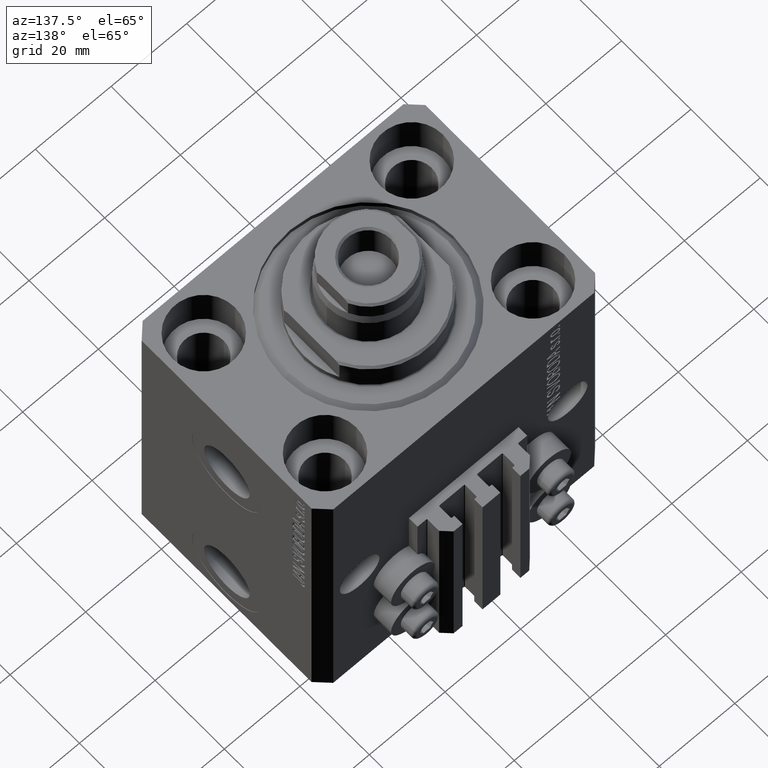
[diagram: clean part render]
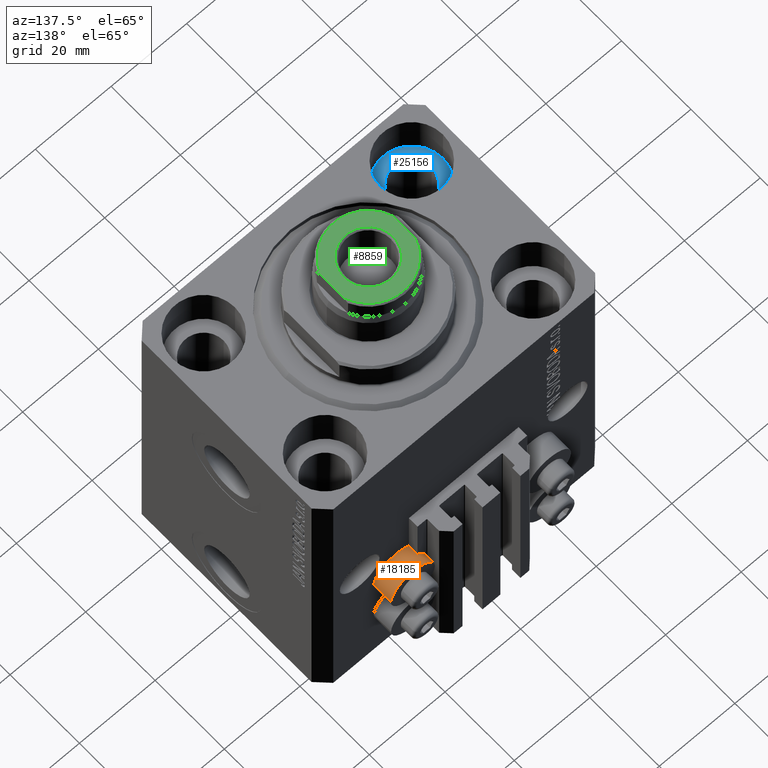
[diagram: same view with three faces highlighted in distinct colors, each labeled with its STEP entity id]
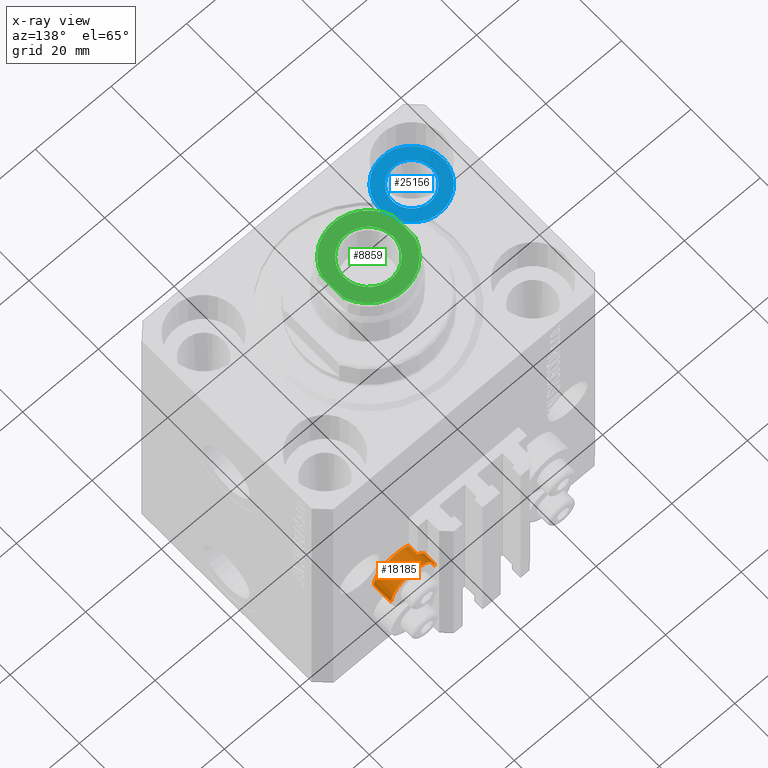
[diagram: x-ray of the same camera — body ghosted, the three highlighted faces saturated]
A machine part, auxiliary view with three faces highlighted in distinct colors.
The next image is the same camera in x-ray (body ghosted, the three faces saturated) — at least one of them is partly hidden behind the body in this view.
Their STEP definitions:

[orange] entity #18185 — the highlighted cylindrical surface (edge-blend (fillet) strip) has radius 5.8 mm, axis along (0, 1, 0).
#542 = CIRCLE ( 'NONE', #12649, 5.799999999999999822 ) ;
#1376 = EDGE_CURVE ( 'NONE', #31262, #31170, #25067, .T. ) ;
#1948 = ORIENTED_EDGE ( 'NONE', *, *, #1376, .T. ) ;
#4572 = EDGE_CURVE ( 'NONE', #40812, #18483, #19758, .T. ) ;
#4655 = AXIS2_PLACEMENT_3D ( 'NONE', #29429, #19247, #33215 ) ;
#7058 = ORIENTED_EDGE ( 'NONE', *, *, #18446, .F. ) ;
#7139 = ORIENTED_EDGE ( 'NONE', *, *, #13946, .T. ) ;
#7478 = DIRECTION ( 'NONE',  ( 0.000000000000000000, 0.000000000000000000, 1.000000000000000000 ) ) ;
#7623 = DIRECTION ( 'NONE',  ( 6.938893903961350152E-16, 1.000000000000000000, 0.000000000000000000 ) ) ;
#10476 = CARTESIAN_POINT ( 'NONE',  ( 23.79999999999999716, 27.49999999999999289, -50.39999999999999858 ) ) ;
#12011 = VECTOR ( 'NONE', #7623, 1000.000000000000000 ) ;
#12649 = AXIS2_PLACEMENT_3D ( 'NONE', #32815, #40380, #7478 ) ;
#12779 = CARTESIAN_POINT ( 'NONE',  ( 23.80000000000000071, 32.49999999996099120, -50.39999999999999858 ) ) ;
#13286 = LINE ( 'NONE', #38366, #24640 ) ;
#13469 = AXIS2_PLACEMENT_3D ( 'NONE', #39641, #18109, #21423 ) ;
#13946 = EDGE_CURVE ( 'NONE', #40812, #31262, #30767, .T. ) ;
#15062 = ORIENTED_EDGE ( 'NONE', *, *, #15376, .F. ) ;
#15376 = EDGE_CURVE ( 'NONE', #27531, #37410, #542, .T. ) ;
#15692 = CARTESIAN_POINT ( 'NONE',  ( 12.20000000000000107, 30.00000000000002487, -50.39999999999999858 ) ) ;
#17075 = VECTOR ( 'NONE', #41642, 1000.000000000000000 ) ;
#17113 = CARTESIAN_POINT ( 'NONE',  ( 18.00000000000000355, 27.49999999999999645, -50.39999999999999858 ) ) ;
#17632 = CARTESIAN_POINT ( 'NONE',  ( 14.49999999999999645, 30.00000000000002487, -45.77506756806113231 ) ) ;
#17825 = ORIENTED_EDGE ( 'NONE', *, *, #4572, .F. ) ;
#18109 = DIRECTION ( 'NONE',  ( 6.938893903961350152E-16, 1.000000000000000000, 0.000000000000000000 ) ) ;
#18185 = ADVANCED_FACE ( 'NONE', ( #21181 ), #35624, .T. ) ;
#18239 = AXIS2_PLACEMENT_3D ( 'NONE', #17113, #31544, #35084 ) ;
#18446 = EDGE_CURVE ( 'NONE', #37410, #31170, #25621, .T. ) ;
#18483 = VERTEX_POINT ( 'NONE', #32022 ) ;
#19036 = DIRECTION ( 'NONE',  ( 6.938893903961350152E-16, 1.000000000000000000, 0.000000000000000000 ) ) ;
#19247 = DIRECTION ( 'NONE',  ( -6.938893903961350152E-16, -1.000000000000000000, -0.000000000000000000 ) ) ;
#19758 = CIRCLE ( 'NONE', #18239, 5.799999999999996270 ) ;
#21181 = FACE_OUTER_BOUND ( 'NONE', #40025, .T. ) ;
#21423 = DIRECTION ( 'NONE',  ( 1.000000000000000000, -1.196361017915040226E-15, 0.000000000000000000 ) ) ;
#24640 = VECTOR ( 'NONE', #19036, 1000.000000000000000 ) ;
#25067 = CIRCLE ( 'NONE', #4655, 5.799999999999999822 ) ;
#25621 = LINE ( 'NONE', #28472, #12011 ) ;
#27349 = CARTESIAN_POINT ( 'NONE',  ( 12.20000000000000639, 32.49999999996099831, -50.39999999999999858 ) ) ;
#27531 = VERTEX_POINT ( 'NONE', #17632 ) ;
#28472 = CARTESIAN_POINT ( 'NONE',  ( 12.20000000000000817, 32.49999999996100541, -50.39999999999999858 ) ) ;
#29429 = CARTESIAN_POINT ( 'NONE',  ( 18.00000000000000711, 32.49999999996099120, -50.39999999999999858 ) ) ;
#30767 = LINE ( 'NONE', #12779, #17075 ) ;
#31170 = VERTEX_POINT ( 'NONE', #27349 ) ;
#31262 = VERTEX_POINT ( 'NONE', #36249 ) ;
#31544 = DIRECTION ( 'NONE',  ( -6.938893903961350152E-16, -1.000000000000000000, -0.000000000000000000 ) ) ;
#32022 = CARTESIAN_POINT ( 'NONE',  ( 14.49999999999999645, 27.50000000000000000, -45.77506756806113231 ) ) ;
#32815 = CARTESIAN_POINT ( 'NONE',  ( 18.00000000000000711, 30.00000000000002487, -50.39999999999999858 ) ) ;
#33215 = DIRECTION ( 'NONE',  ( 1.000000000000000000, -1.196361017915039437E-15, 0.000000000000000000 ) ) ;
#35084 = DIRECTION ( 'NONE',  ( 1.000000000000000000, -5.981805089575201128E-16, 0.000000000000000000 ) ) ;
#35624 = CYLINDRICAL_SURFACE ( 'NONE', #13469, 5.799999999999996270 ) ;
#36249 = CARTESIAN_POINT ( 'NONE',  ( 23.80000000000000426, 32.49999999996098410, -50.39999999999999858 ) ) ;
#37410 = VERTEX_POINT ( 'NONE', #15692 ) ;
#38366 = CARTESIAN_POINT ( 'NONE',  ( 14.49999999999999645, 32.49999999996099831, -45.77506756806113231 ) ) ;
#39641 = CARTESIAN_POINT ( 'NONE',  ( 18.00000000000000711, 32.49999999996099831, -50.39999999999999858 ) ) ;
#40025 = EDGE_LOOP ( 'NONE', ( #7058, #15062, #40638, #17825, #7139, #1948 ) ) ;
#40380 = DIRECTION ( 'NONE',  ( -0.000000000000000000, -1.000000000000000000, 0.000000000000000000 ) ) ;
#40638 = ORIENTED_EDGE ( 'NONE', *, *, #45620, .F. ) ;
#40812 = VERTEX_POINT ( 'NONE', #10476 ) ;
#41642 = DIRECTION ( 'NONE',  ( 6.938893903961350152E-16, 1.000000000000000000, 0.000000000000000000 ) ) ;
#45620 = EDGE_CURVE ( 'NONE', #18483, #27531, #13286, .T. ) ;

[blue] entity #25156 — the highlighted planar face has unit normal (0, 0, 1).
#120 = CIRCLE ( 'NONE', #26599, 8.250000000000000000 ) ;
#339 = CARTESIAN_POINT ( 'NONE',  ( -35.75000000000000711, -17.50000000000000000, -11.00000000000000000 ) ) ;
#525 = EDGE_CURVE ( 'NONE', #15938, #45377, #9939, .T. ) ;
#1005 = DIRECTION ( 'NONE',  ( 1.000000000000000000, 0.000000000000000000, 0.000000000000000000 ) ) ;
#3507 = EDGE_LOOP ( 'NONE', ( #22769, #17436 ) ) ;
#4111 = AXIS2_PLACEMENT_3D ( 'NONE', #27913, #42347, #18889 ) ;
#5044 = DIRECTION ( 'NONE',  ( 0.000000000000000000, 0.000000000000000000, 1.000000000000000000 ) ) ;
#5466 = EDGE_CURVE ( 'NONE', #45377, #15938, #120, .T. ) ;
#7102 = AXIS2_PLACEMENT_3D ( 'NONE', #15483, #5044, #8139 ) ;
#8139 = DIRECTION ( 'NONE',  ( 1.000000000000000000, 0.000000000000000000, 0.000000000000000000 ) ) ;
#8240 = CARTESIAN_POINT ( 'NONE',  ( -19.25000000000000355, -17.50000000000000000, -11.00000000000000000 ) ) ;
#9939 = CIRCLE ( 'NONE', #46222, 8.250000000000000000 ) ;
#11500 = EDGE_CURVE ( 'NONE', #38067, #28920, #21516, .T. ) ;
#15483 = CARTESIAN_POINT ( 'NONE',  ( -27.50000000000000355, -17.50000000000000000, -11.00000000000000000 ) ) ;
#15618 = CARTESIAN_POINT ( 'NONE',  ( -32.75000000000000000, -17.50000000000000000, -11.00000000000000000 ) ) ;
#15938 = VERTEX_POINT ( 'NONE', #8240 ) ;
#17322 = DIRECTION ( 'NONE',  ( 0.000000000000000000, 0.000000000000000000, 1.000000000000000000 ) ) ;
#17436 = ORIENTED_EDGE ( 'NONE', *, *, #39762, .F. ) ;
#18766 = CARTESIAN_POINT ( 'NONE',  ( -27.50000000000000355, -17.50000000000000000, -11.00000000000000000 ) ) ;
#18889 = DIRECTION ( 'NONE',  ( 1.000000000000000000, 0.000000000000000000, 0.000000000000000000 ) ) ;
#18990 = AXIS2_PLACEMENT_3D ( 'NONE', #43566, #17322, #46655 ) ;
#20874 = FACE_OUTER_BOUND ( 'NONE', #27654, .T. ) ;
#21516 = CIRCLE ( 'NONE', #4111, 5.250000000000000888 ) ;
#22769 = ORIENTED_EDGE ( 'NONE', *, *, #11500, .F. ) ;
#25156 = ADVANCED_FACE ( 'NONE', ( #29137, #20874 ), #35308, .T. ) ;
#26599 = AXIS2_PLACEMENT_3D ( 'NONE', #33148, #33631, #29368 ) ;
#27541 = CIRCLE ( 'NONE', #7102, 5.250000000000000888 ) ;
#27654 = EDGE_LOOP ( 'NONE', ( #37882, #46491 ) ) ;
#27913 = CARTESIAN_POINT ( 'NONE',  ( -27.50000000000000355, -17.50000000000000000, -11.00000000000000000 ) ) ;
#28026 = CARTESIAN_POINT ( 'NONE',  ( -22.25000000000000355, -17.50000000000000000, -11.00000000000000000 ) ) ;
#28920 = VERTEX_POINT ( 'NONE', #15618 ) ;
#29137 = FACE_BOUND ( 'NONE', #3507, .T. ) ;
#29368 = DIRECTION ( 'NONE',  ( 1.000000000000000000, 0.000000000000000000, 0.000000000000000000 ) ) ;
#33148 = CARTESIAN_POINT ( 'NONE',  ( -27.50000000000000355, -17.50000000000000000, -11.00000000000000000 ) ) ;
#33631 = DIRECTION ( 'NONE',  ( 0.000000000000000000, 0.000000000000000000, 1.000000000000000000 ) ) ;
#35308 = PLANE ( 'NONE',  #18990 ) ;
#37882 = ORIENTED_EDGE ( 'NONE', *, *, #525, .T. ) ;
#38067 = VERTEX_POINT ( 'NONE', #28026 ) ;
#39762 = EDGE_CURVE ( 'NONE', #28920, #38067, #27541, .T. ) ;
#42347 = DIRECTION ( 'NONE',  ( 0.000000000000000000, 0.000000000000000000, 1.000000000000000000 ) ) ;
#43566 = CARTESIAN_POINT ( 'NONE',  ( -27.50000000000000355, -17.50000000000000000, -11.00000000000000000 ) ) ;
#44553 = DIRECTION ( 'NONE',  ( 0.000000000000000000, 0.000000000000000000, 1.000000000000000000 ) ) ;
#45377 = VERTEX_POINT ( 'NONE', #339 ) ;
#46222 = AXIS2_PLACEMENT_3D ( 'NONE', #18766, #44553, #1005 ) ;
#46491 = ORIENTED_EDGE ( 'NONE', *, *, #5466, .T. ) ;
#46655 = DIRECTION ( 'NONE',  ( 1.000000000000000000, 0.000000000000000000, -0.000000000000000000 ) ) ;

[green] entity #8859 — the highlighted planar face has unit normal (0, 0, 1).
#738 = VERTEX_POINT ( 'NONE', #32215 ) ;
#2227 = FACE_BOUND ( 'NONE', #24941, .T. ) ;
#2563 = EDGE_CURVE ( 'NONE', #31997, #34627, #23768, .T. ) ;
#3278 = DIRECTION ( 'NONE',  ( 0.000000000000000000, 0.000000000000000000, -1.000000000000000000 ) ) ;
#3474 = DIRECTION ( 'NONE',  ( -1.000000000000000000, 0.000000000000000000, 0.000000000000000000 ) ) ;
#4252 = ORIENTED_EDGE ( 'NONE', *, *, #5635, .T. ) ;
#4783 = CIRCLE ( 'NONE', #25201, 6.499999999999992006 ) ;
#4827 = DIRECTION ( 'NONE',  ( 1.000000000000000000, -0.000000000000000000, -0.000000000000000000 ) ) ;
#5635 = EDGE_CURVE ( 'NONE', #45082, #738, #7690, .T. ) ;
#7232 = DIRECTION ( 'NONE',  ( 0.000000000000000000, -1.000000000000000000, 1.939479807224432739E-16 ) ) ;
#7690 = CIRCLE ( 'NONE', #34163, 6.499999999999992006 ) ;
#8442 = ORIENTED_EDGE ( 'NONE', *, *, #2563, .T. ) ;
#8620 = CARTESIAN_POINT ( 'NONE',  ( 93.00000000000000000, 4.472135954999576946, 9.500000000000003553 ) ) ;
#8746 = VERTEX_POINT ( 'NONE', #18187 ) ;
#8761 = CARTESIAN_POINT ( 'NONE',  ( 93.00000000000000000, 0.000000000000000000, 0.000000000000000000 ) ) ;
#8859 = ADVANCED_FACE ( 'NONE', ( #2227, #22442 ), #30658, .T. ) ;
#9595 = EDGE_CURVE ( 'NONE', #34627, #17018, #29022, .T. ) ;
#10067 = AXIS2_PLACEMENT_3D ( 'NONE', #44848, #23783, #19755 ) ;
#13712 = DIRECTION ( 'NONE',  ( -1.000000000000000000, 0.000000000000000000, 0.000000000000000000 ) ) ;
#14505 = ORIENTED_EDGE ( 'NONE', *, *, #37012, .F. ) ;
#16332 = ORIENTED_EDGE ( 'NONE', *, *, #9595, .T. ) ;
#17018 = VERTEX_POINT ( 'NONE', #26425 ) ;
#18187 = CARTESIAN_POINT ( 'NONE',  ( 93.00000000000000000, 3.122498999199126768, -9.500000000000003553 ) ) ;
#18855 = EDGE_CURVE ( 'NONE', #8746, #31997, #39943, .T. ) ;
#19537 = AXIS2_PLACEMENT_3D ( 'NONE', #36795, #4827, #37024 ) ;
#19755 = DIRECTION ( 'NONE',  ( -0.000000000000000000, 0.000000000000000000, -1.000000000000000000 ) ) ;
#20675 = AXIS2_PLACEMENT_3D ( 'NONE', #8761, #27915, #46366 ) ;
#22442 = FACE_OUTER_BOUND ( 'NONE', #44484, .T. ) ;
#23768 = LINE ( 'NONE', #8620, #40885 ) ;
#23783 = DIRECTION ( 'NONE',  ( 1.000000000000000000, 0.000000000000000000, -0.000000000000000000 ) ) ;
#24941 = EDGE_LOOP ( 'NONE', ( #27585, #4252 ) ) ;
#25201 = AXIS2_PLACEMENT_3D ( 'NONE', #39447, #3474, #32354 ) ;
#26425 = CARTESIAN_POINT ( 'NONE',  ( 93.00000000000000000, -3.122498999199130321, -9.500000000000003553 ) ) ;
#27585 = ORIENTED_EDGE ( 'NONE', *, *, #33380, .T. ) ;
#27915 = DIRECTION ( 'NONE',  ( 1.000000000000000000, -0.000000000000000000, -0.000000000000000000 ) ) ;
#29022 = CIRCLE ( 'NONE', #20675, 9.999999999999980460 ) ;
#29217 = ORIENTED_EDGE ( 'NONE', *, *, #18855, .T. ) ;
#30405 = DIRECTION ( 'NONE',  ( 0.000000000000000000, -1.000000000000000000, -1.939479807224432739E-16 ) ) ;
#30658 = PLANE ( 'NONE',  #10067 ) ;
#31997 = VERTEX_POINT ( 'NONE', #40099 ) ;
#32215 = CARTESIAN_POINT ( 'NONE',  ( 93.00000000000000000, -7.916808551943042919E-15, -6.499999999999992006 ) ) ;
#32354 = DIRECTION ( 'NONE',  ( 0.000000000000000000, 0.000000000000000000, -1.000000000000000000 ) ) ;
#32957 = CARTESIAN_POINT ( 'NONE',  ( 93.00000000000000000, -3.122498999199136982, 9.500000000000001776 ) ) ;
#33380 = EDGE_CURVE ( 'NONE', #738, #45082, #4783, .T. ) ;
#34163 = AXIS2_PLACEMENT_3D ( 'NONE', #42577, #13712, #3278 ) ;
#34627 = VERTEX_POINT ( 'NONE', #32957 ) ;
#36335 = CARTESIAN_POINT ( 'NONE',  ( 93.00000000000000000, 4.472135954999576946, -9.500000000000003553 ) ) ;
#36795 = CARTESIAN_POINT ( 'NONE',  ( 93.00000000000000000, 0.000000000000000000, 0.000000000000000000 ) ) ;
#37012 = EDGE_CURVE ( 'NONE', #8746, #17018, #39660, .T. ) ;
#37024 = DIRECTION ( 'NONE',  ( 0.000000000000000000, 0.000000000000000000, -1.000000000000000000 ) ) ;
#37392 = VECTOR ( 'NONE', #7232, 1000.000000000000000 ) ;
#39447 = CARTESIAN_POINT ( 'NONE',  ( 93.00000000000000000, -7.916808551943042919E-15, 0.000000000000000000 ) ) ;
#39660 = LINE ( 'NONE', #36335, #37392 ) ;
#39943 = CIRCLE ( 'NONE', #19537, 9.999999999999980460 ) ;
#40099 = CARTESIAN_POINT ( 'NONE',  ( 93.00000000000000000, 3.122498999199132985, 9.500000000000003553 ) ) ;
#40885 = VECTOR ( 'NONE', #30405, 1000.000000000000000 ) ;
#42577 = CARTESIAN_POINT ( 'NONE',  ( 93.00000000000000000, -7.916808551943042919E-15, 0.000000000000000000 ) ) ;
#42999 = CARTESIAN_POINT ( 'NONE',  ( 93.00000000000000000, -7.120788132497264456E-15, 6.499999999999992006 ) ) ;
#44484 = EDGE_LOOP ( 'NONE', ( #14505, #29217, #8442, #16332 ) ) ;
#44848 = CARTESIAN_POINT ( 'NONE',  ( 93.00000000000000000, 0.000000000000000000, 0.000000000000000000 ) ) ;
#45082 = VERTEX_POINT ( 'NONE', #42999 ) ;
#46366 = DIRECTION ( 'NONE',  ( 0.000000000000000000, 0.000000000000000000, -1.000000000000000000 ) ) ;